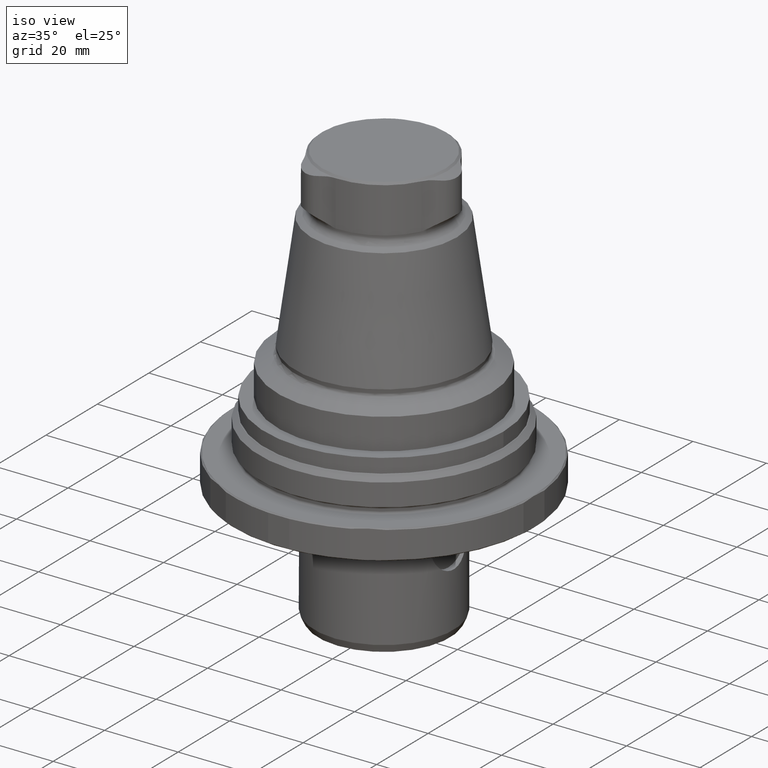
[diagram: clean part render]
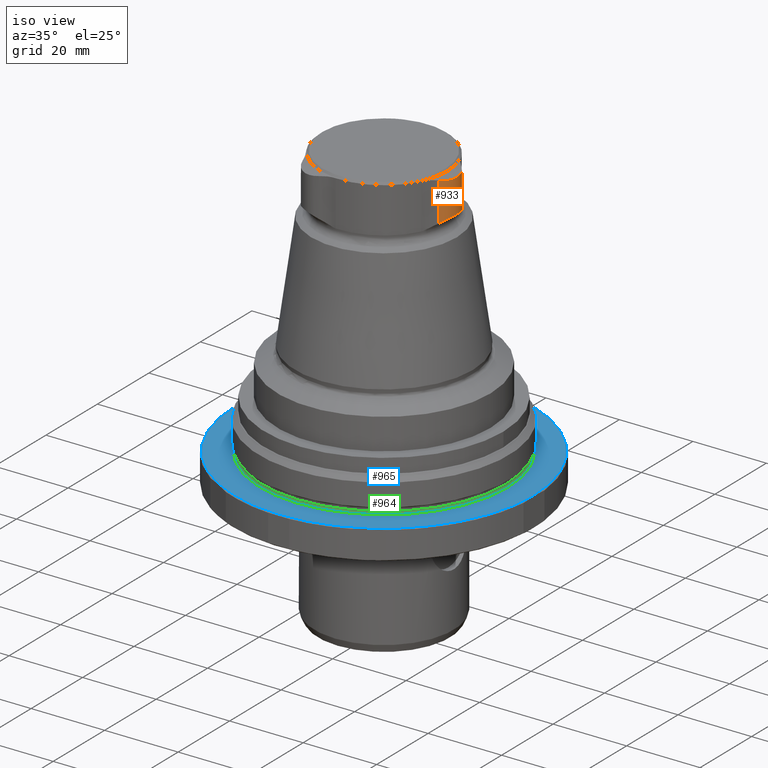
[diagram: same view with three faces highlighted in distinct colors, each labeled with its STEP entity id]
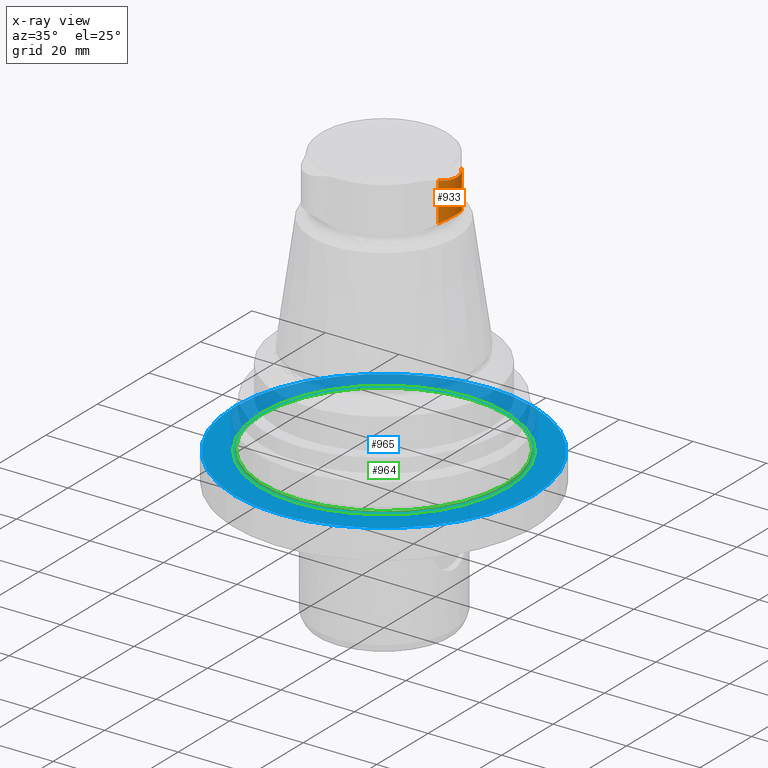
[diagram: x-ray of the same camera — body ghosted, the three highlighted faces saturated]
A machine part, iso view with three faces highlighted in distinct colors.
The next image is the same camera in x-ray (body ghosted, the three faces saturated) — at least one of them is partly hidden behind the body in this view.
Their STEP definitions:

[orange] entity #933 — the highlighted cylindrical surface (edge-blend (fillet) strip) has radius 6.35 mm, axis along (0, 0, 1).
#117=LINE('',#1496,#147);
#118=LINE('',#1507,#148);
#147=VECTOR('',#1168,1000.);
#148=VECTOR('',#1169,1000.);
#196=ORIENTED_EDGE('',*,*,#454,.T.);
#197=ORIENTED_EDGE('',*,*,#455,.F.);
#198=ORIENTED_EDGE('',*,*,#456,.F.);
#199=ORIENTED_EDGE('',*,*,#457,.F.);
#454=EDGE_CURVE('',#585,#586,#117,.T.);
#455=EDGE_CURVE('',#587,#586,#668,.T.);
#456=EDGE_CURVE('',#588,#587,#118,.T.);
#457=EDGE_CURVE('',#585,#588,#669,.T.);
#585=VERTEX_POINT('',#1497);
#586=VERTEX_POINT('',#1498);
#587=VERTEX_POINT('',#1506);
#588=VERTEX_POINT('',#1508);
#668=B_SPLINE_CURVE_WITH_KNOTS('',3,(#1499,#1500,#1501,#1502,#1503,#1504,
#1505),.UNSPECIFIED.,.F.,.F.,(4,1,1,1,4),(2.84118447355397E-7,0.00249934494895464,
0.00499840577946193,0.00749746660996922,0.00999652744047651),
 .UNSPECIFIED.);
#669=B_SPLINE_CURVE_WITH_KNOTS('',3,(#1509,#1510,#1511,#1512,#1513,#1514,
#1515),.UNSPECIFIED.,.F.,.F.,(4,1,1,1,4),(3.04578262084422E-7,0.00256285858797735,
0.00512541259769261,0.00768796660740787,0.0102505206171231),
 .UNSPECIFIED.);
#720=EDGE_LOOP('',(#196,#197,#198,#199));
#815=FACE_BOUND('',#720,.T.);
#898=CYLINDRICAL_SURFACE('',#1021,6.35);
#933=ADVANCED_FACE('',(#815),#898,.T.);
#1021=AXIS2_PLACEMENT_3D('',#1495,#1166,#1167);
#1166=DIRECTION('',(0.,0.,1.));
#1167=DIRECTION('',(1.,-6.12303176911189E-17,0.));
#1168=DIRECTION('',(0.,0.,1.));
#1169=DIRECTION('',(0.,0.,1.));
#1495=CARTESIAN_POINT('',(13.45,-8.23547772984548E-16,-46.0210065492642));
#1496=CARTESIAN_POINT('',(17.9347568081611,4.49549289529549,-46.0210065492642));
#1497=CARTESIAN_POINT('',(17.9347568081611,4.49549289529549,61.4315662257756));
#1498=CARTESIAN_POINT('',(17.9347568081611,4.49549289529549,72.0597450497322));
#1499=CARTESIAN_POINT('',(17.9347568081611,-4.49549289529549,72.0597450497322));
#1500=CARTESIAN_POINT('',(18.5225614419484,-3.90909205012795,71.9041148537236));
#1501=CARTESIAN_POINT('',(19.4610857320775,-2.51303377295624,71.6659090895393));
#1502=CARTESIAN_POINT('',(19.9685709394265,-0.00183002506946202,71.5414607556683));
#1503=CARTESIAN_POINT('',(19.4646276304976,2.50554054900793,71.6650186576712));
#1504=CARTESIAN_POINT('',(18.5226164935731,3.9090371299769,71.9041002779706));
#1505=CARTESIAN_POINT('',(17.9347568081611,4.49549289529549,72.0597450497322));
#1506=CARTESIAN_POINT('',(17.9347568081611,-4.4954928952955,72.0597450497322));
#1507=CARTESIAN_POINT('',(17.9347568081611,-4.4954928952955,-46.0210065492642));
#1508=CARTESIAN_POINT('',(17.9347568081611,-4.4954928952955,61.4315662257756));
#1509=CARTESIAN_POINT('',(17.9347568081611,4.49549289529549,61.4315662257756));
#1510=CARTESIAN_POINT('',(18.4970090568549,3.93458341129388,61.7747602538548));
#1511=CARTESIAN_POINT('',(19.4388730983976,2.57204054174551,62.3270238816747));
#1512=CARTESIAN_POINT('',(19.9795754100358,0.00658735192789072,62.6326113282816));
#1513=CARTESIAN_POINT('',(19.442811798377,-2.5663604837447,62.3293050802985));
#1514=CARTESIAN_POINT('',(18.4973020928328,-3.93429107514128,61.774939120543));
#1515=CARTESIAN_POINT('',(17.9347568081611,-4.49549289529549,61.4315662257756));

[blue] entity #965 — the highlighted planar face has unit normal (-0, -0, -1).
#44=PLANE('',#1079);
#90=CIRCLE('',#1078,33.65);
#91=CIRCLE('',#1080,40.7);
#316=ORIENTED_EDGE('',*,*,#511,.T.);
#317=ORIENTED_EDGE('',*,*,#512,.F.);
#511=EDGE_CURVE('',#627,#627,#90,.T.);
#512=EDGE_CURVE('',#628,#628,#91,.T.);
#627=VERTEX_POINT('',#1711);
#628=VERTEX_POINT('',#1714);
#770=EDGE_LOOP('',(#316));
#771=EDGE_LOOP('',(#317));
#865=FACE_BOUND('',#770,.T.);
#866=FACE_BOUND('',#771,.T.);
#965=ADVANCED_FACE('',(#865,#866),#44,.F.);
#1078=AXIS2_PLACEMENT_3D('',#1710,#1290,#1291);
#1079=AXIS2_PLACEMENT_3D('',#1712,#1292,#1293);
#1080=AXIS2_PLACEMENT_3D('',#1713,#1294,#1295);
#1290=DIRECTION('',(-7.30126435159279E-33,-9.52839055771651E-18,-1.));
#1291=DIRECTION('',(-1.,-8.32667268468868E-17,2.89465139560709E-33));
#1292=DIRECTION('',(-7.30126435159279E-33,-9.52839055771651E-18,-1.));
#1293=DIRECTION('',(-1.,-8.32667268468868E-17,2.89465139560709E-33));
#1294=DIRECTION('',(-7.30126435159279E-33,-9.52839055771651E-18,-1.));
#1295=DIRECTION('',(-1.,-8.32667268468868E-17,2.89465139560709E-33));
#1710=CARTESIAN_POINT('',(7.88665112559661E-15,-9.1472549354079E-17,-1.00000000000001));
#1711=CARTESIAN_POINT('',(-33.65,-2.89339790775182E-15,-1.00000000000001));
#1712=CARTESIAN_POINT('',(-33.65,-2.89339790775182E-15,-1.00000000000001));
#1713=CARTESIAN_POINT('',(7.88665112559661E-15,-9.1472549354079E-17,-1.00000000000001));
#1714=CARTESIAN_POINT('',(-40.7,-3.48042833202237E-15,-1.00000000000001));

[green] entity #964 — the highlighted toroidal blend (fillet) surface has major radius 33.65 mm and minor (blend) radius 0.6 mm.
#24=TOROIDAL_SURFACE('',#1077,33.65,0.6);
#81=CIRCLE('',#1060,33.05);
#90=CIRCLE('',#1078,33.65);
#314=ORIENTED_EDGE('',*,*,#511,.F.);
#315=ORIENTED_EDGE('',*,*,#502,.T.);
#502=EDGE_CURVE('',#618,#618,#81,.T.);
#511=EDGE_CURVE('',#627,#627,#90,.T.);
#618=VERTEX_POINT('',#1684);
#627=VERTEX_POINT('',#1711);
#768=EDGE_LOOP('',(#314));
#769=EDGE_LOOP('',(#315));
#863=FACE_BOUND('',#768,.T.);
#864=FACE_BOUND('',#769,.T.);
#964=ADVANCED_FACE('',(#863,#864),#24,.F.);
#1060=AXIS2_PLACEMENT_3D('',#1683,#1254,#1255);
#1077=AXIS2_PLACEMENT_3D('',#1709,#1288,#1289);
#1078=AXIS2_PLACEMENT_3D('',#1710,#1290,#1291);
#1254=DIRECTION('',(-7.30126435159279E-33,-9.52839055771651E-18,-1.));
#1255=DIRECTION('',(-1.,-8.32667268468868E-17,2.89465139560709E-33));
#1288=DIRECTION('',(-7.30126435159279E-33,-9.52839055771651E-18,-1.));
#1289=DIRECTION('',(-1.,-8.32667268468868E-17,2.89465139560709E-33));
#1290=DIRECTION('',(-7.30126435159279E-33,-9.52839055771651E-18,-1.));
#1291=DIRECTION('',(-1.,-8.32667268468868E-17,2.89465139560709E-33));
#1683=CARTESIAN_POINT('',(7.88665112559661E-15,-8.57555150194491E-17,-0.400000000000008));
#1684=CARTESIAN_POINT('',(-33.05,-2.83772083730906E-15,-0.400000000000008));
#1709=CARTESIAN_POINT('',(7.88665112559661E-15,-8.57555150194491E-17,-0.400000000000008));
#1710=CARTESIAN_POINT('',(7.88665112559661E-15,-9.1472549354079E-17,-1.00000000000001));
#1711=CARTESIAN_POINT('',(-33.65,-2.89339790775182E-15,-1.00000000000001));